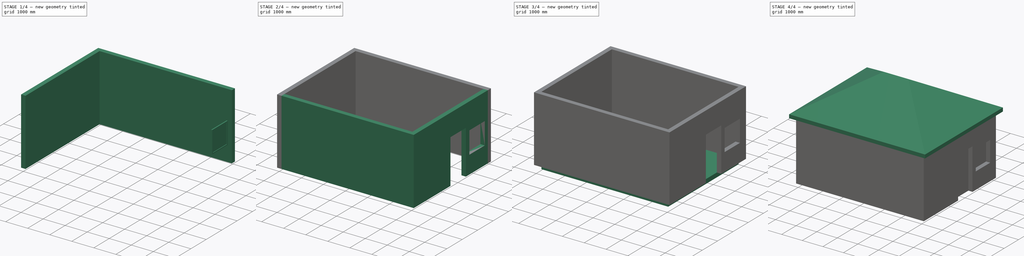
[diagram: build sequence overview — one tinted view per stage of 4, left to right]
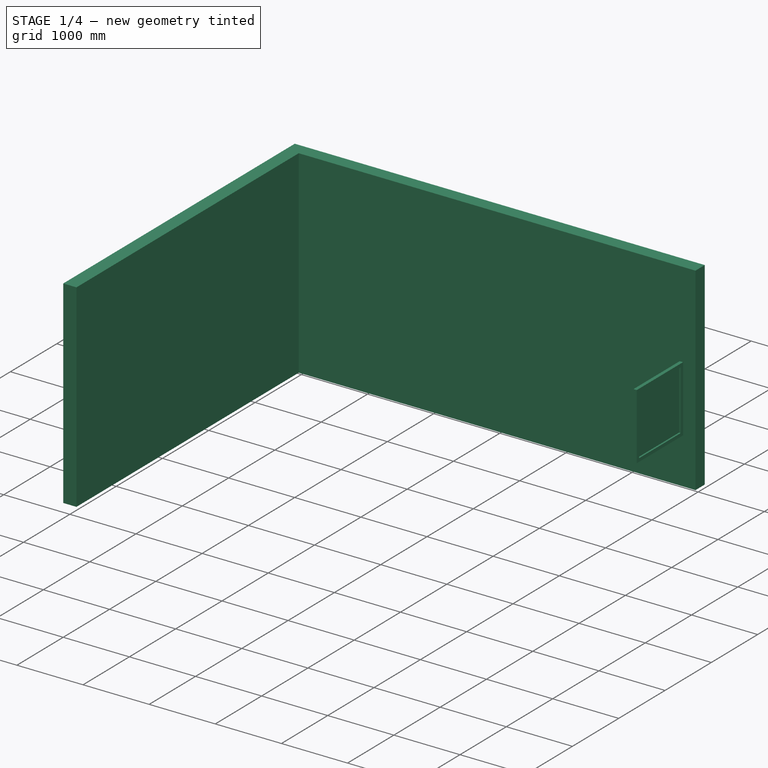
[diagram: stage 1 of 4 — iso view after this stage's code; geometry added in this stage tinted green]
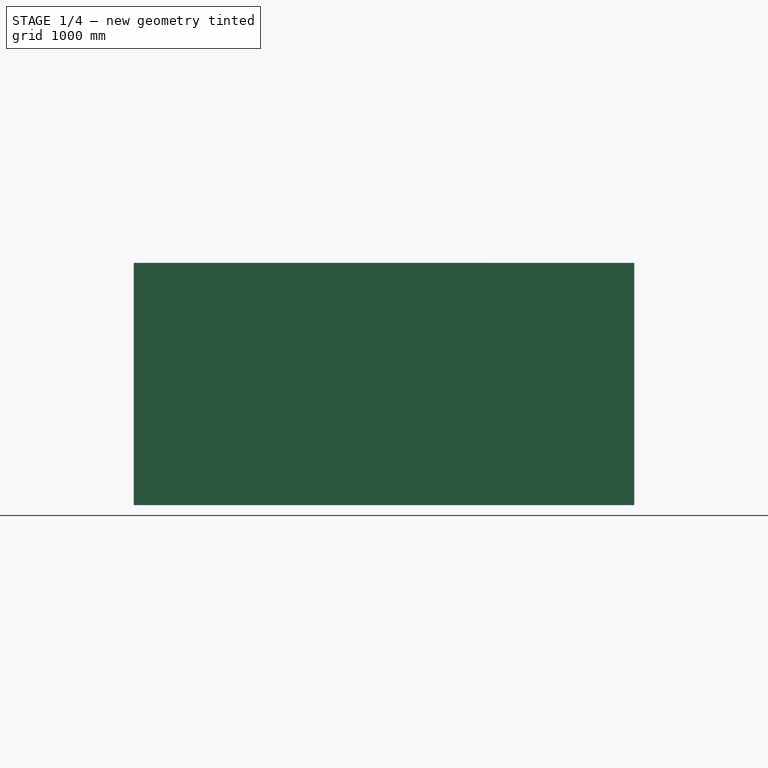
[diagram: stage 1 of 4 — front view after this stage's code; geometry added in this stage tinted green]
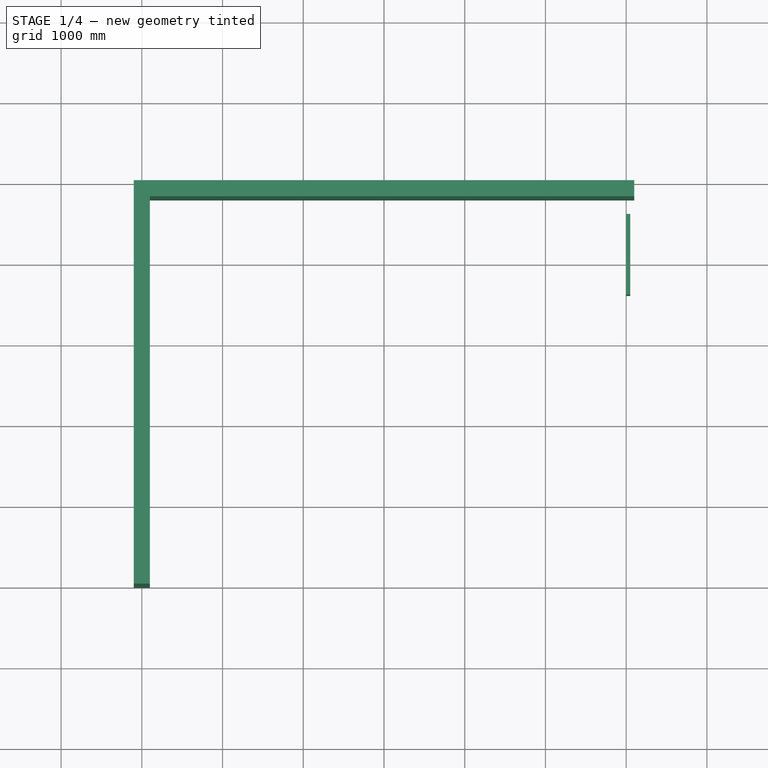
[diagram: stage 1 of 4 — top view after this stage's code; geometry added in this stage tinted green]
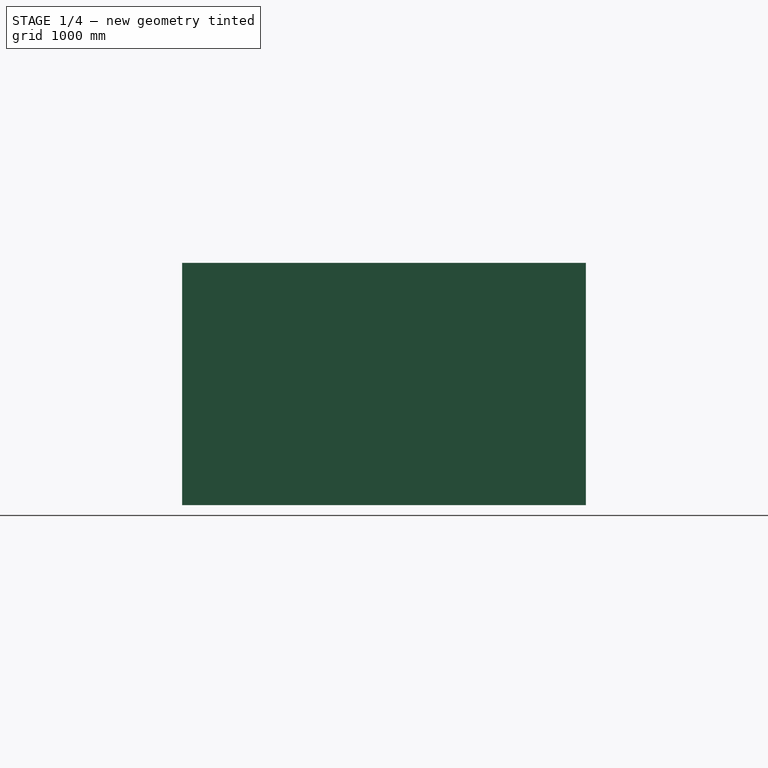
[diagram: stage 1 of 4 — right view after this stage's code; geometry added in this stage tinted green]
FCSTD DOCUMENT  (FreeCAD 0.16R6398 (Git))
Label: teste_A41
License: All rights reserved
LicenseURL: http://en.wikipedia.org/wiki/All_rights_reserved
objects: App::FeaturePython×12, Drawing::FeatureViewPython×12, Part::FeaturePython×11, Drawing::FeatureViewPart×6, Sketcher::SketchObject×5, App::DocumentObjectGroup×4, App::MaterialObjectPython×3, Part::Part2DObjectPython×3, Part::Feature×2, App::DocumentObjectGroupPython×2, Drawing::FeatureViewAnnotation×1, Part::Chamfer×1, Spreadsheet::Sheet×1, Drawing::FeatureViewSpreadsheet×1, Part::Extrusion×1, Drawing::FeaturePage×1
note: 27 computed .brp shape members not serialized (recipe doc carries the construction recipe); baked Part::Feature solids carry a one-line shape summary decoded from their .brp

FEATURE [App::MaterialObjectPython] Material002  label="Material"  # material (typed FeaturePython)
FEATURE [App::DocumentObjectGroupPython] MaterialContainer  label="Materials"  # scripted group (container) (typed FeaturePython)
  Group = -> [Material,Material001,Material002]
FEATURE [Sketcher::SketchObject] Sketch001
  Placement = pos=(100,4076.98,773.527) rot=(0.57735,0.57735,0.57735;2.0944rad)
  sketch-geometry (8):
    g0: LineSegment StartX=0 StartY=0 StartZ=0 EndX=1000 EndY=0 EndZ=0
    g1: LineSegment StartX=1000 StartY=0 StartZ=0 EndX=1000 EndY=1000 EndZ=0
    g2: LineSegment StartX=1000 StartY=1000 StartZ=0 EndX=0 EndY=1000 EndZ=0
    g3: LineSegment StartX=0 StartY=1000 StartZ=0 EndX=0 EndY=0 EndZ=0
    g4: LineSegment StartX=50 StartY=50 StartZ=0 EndX=950 EndY=50 EndZ=0
    g5: LineSegment StartX=950 StartY=50 StartZ=0 EndX=950 EndY=950 EndZ=0
    g6: LineSegment StartX=950 StartY=950 StartZ=0 EndX=50 EndY=950 EndZ=0
    g7: LineSegment StartX=50 StartY=950 StartZ=0 EndX=50 EndY=50 EndZ=0
  constraints (23):
    c: Coincident(g0,g1)
    c: Coincident(g1,g2)
    c: Coincident(g2,g3)
    c: Coincident(g3,g0)
    c: Horizontal(g0)
    c: Horizontal(g2)
    c: Vertical(g1)
    c: Vertical(g3)
    c: Coincident(g4,g5)
    c: Coincident(g5,g6)
    c: Coincident(g6,g7)
    c: Coincident(g7,g4)
    c: Horizontal(g4)
    c: Horizontal(g6)
    c: Vertical(g5)
    c: Vertical(g7)
    c: DistanceY(g1) = 1000
    c: DistanceX(g0) = 1000
    c: DistanceY(g6,g2) = 50
    c: DistanceX(g2,g6) = 50
    c: DistanceX(g4,g0) = 50
    c: DistanceY(g0,g4) = 50
    c: Coincident(g0,g-1)
FEATURE [Part::FeaturePython] Window001  label="Window"  # WARN: FeaturePython — macro-defined, semantics opaque (R4)
  Base = -> Sketch001
  Height = 1000
  HoleDepth = 0
  MoveWithHost = true
  Normal = (-1,0,0)
  Placement = pos=(0,-474.096,37.6961) rot=(0,0,1;0rad)
  Preset = 1
  Role = 0
  Width = 1000
  WindowParts = OuterFrame | Frame | Wire0,Wire1 | 50.0 | 50.0 | Glass | Glass panel | Wire1 | 5.0 | 75.0
FEATURE [Sketcher::SketchObject] Linha_base005
  Placement = pos=(-3000,2500,0) rot=(0,0,1;1.5708rad)
  sketch-geometry (1):
    g0: LineSegment StartX=2300 StartY=-3100 StartZ=0 EndX=2300 EndY=2900 EndZ=0
FEATURE [Part::FeaturePython] Wall004  # WARN: FeaturePython — macro-defined, semantics opaque (R4)
  Align = 0
  Base = -> Linha_base005
  Face = 0
  Height = 3000
  Length = 6000
  MoveWithHost = false
  Normal = (0,0,1)
  Role = 0
  Width = 200
FEATURE [Sketcher::SketchObject] Linha_base006
  Placement = pos=(-3000,2500,0) rot=(0,0,1;1.5708rad)
  sketch-geometry (1):
    g0: LineSegment StartX=2500 StartY=2900 StartZ=0 EndX=-2500 EndY=2900 EndZ=0
FEATURE [Part::FeaturePython] Wall005  # WARN: FeaturePython — macro-defined, semantics opaque (R4)
  Align = 0
  Base = -> Linha_base006
  Face = 0
  Height = 3000
  Length = 5000
  MoveWithHost = false
  Normal = (0,0,1)
  Role = 0
  Width = 200
FEATURE [App::DocumentObjectGroupPython] Floor  label="Piso"  # scripted group (container) (typed FeaturePython)
  Group = -> [Equipment,Chamfer007,Structure,Space,Grupo003,Window,Wall,Wall003,Wall004,Wall005]
  Height = 0
FEATURE [App::FeaturePython] Section  label="alçado"  # WARN: FeaturePython — macro-defined, semantics opaque (R4)
  Objects = -> [Equipment,Chamfer007,Floor]
  OnlySolids = true
  Placement = pos=(-100,2441.84,1576.92) rot=(0.57735,-0.57735,-0.57735;2.0944rad)
FEATURE [Drawing::FeatureViewPython] View  label="alçado001"  # drawing view (typed FeaturePython)
  FontSize = 12
  LineWidth = 0.1
  RenderingMode = 1
  Rotation = 90
  Scale = 0.01
  ShowCut = true
  ShowFill = false
  Source = -> Section
  ViewResult = <blob: 5665 chars omitted>
  Visible = true
  X = 100
  Y = 100
FEATURE [App::FeaturePython] Section001  label="corte"  # WARN: FeaturePython — macro-defined, semantics opaque (R4)
  Objects = -> [Window,Dimension001,Dimension002,Equipment,Chamfer007,Floor,Roof]
  OnlySolids = true
  Placement = pos=(0,2891.51,980) rot=(0.57735,-0.57735,0.57735;2.0944rad)
FEATURE [App::FeaturePython] Section002  label="planta001"  # WARN: FeaturePython — macro-defined, semantics opaque (R4)
  Objects = -> [Equipment,Chamfer007,Floor,Roof]
  OnlySolids = true
  Placement = pos=(0,0,1000) rot=(0,0,1;0rad)
FEATURE [Drawing::FeatureViewPython] View002  label="planta002"  # drawing view (typed FeaturePython)
  FontSize = 0
  LineWidth = 0.15
  RenderingMode = 1
  Rotation = 0
  Scale = 0.01
  ShowCut = false
  ShowFill = true
  Source = -> Section002
  ViewResult = <blob: 14572 chars omitted>
  Visible = true
  X = 100
  Y = 180
FEATURE [Part::Part2DObjectPython] Shape2DView  # Draft 2D object (typed FeaturePython)
  Base = -> Section002
  HiddenLines = false
  Projection = (0,0,1)
  ProjectionMode = 0
  SegmentLength = 0.05
  Tessellation = false
FEATURE [App::FeaturePython] Section003  label="alçado1"  # WARN: FeaturePython — macro-defined, semantics opaque (R4)
  Objects = -> [Roof,Floor]
  OnlySolids = true
  Placement = pos=(-3000,1406.48,2971.13) rot=(0.57735,-0.57735,0.57735;2.0944rad)
FEATURE [Drawing::FeatureViewPython] View004  label="alçado003"  # drawing view (typed FeaturePython)
  FontSize = 12
  LineWidth = 0.15
  RenderingMode = 1
  Rotation = 90
  Scale = 0.01
  ShowCut = false
  ShowFill = false
  Source = -> Section003
  ViewResult = <blob: 5448 chars omitted>
  Visible = true
  X = 175
  Y = 180
FEATURE [Drawing::FeatureViewPython] ViewShape2DView  # drawing view (typed FeaturePython)
  Direction = (0,0,0)
  FillStyle = 3
  FontSize = 12
  LineStyle = 0
  LineWidth = 0.35
  Rotation = 0
  Scale = 0.01
  Source = -> Shape2DView
  ViewResult = <blob: 45212 chars omitted>
  Visible = false
  X = 100
  Y = 180
FEATURE [Drawing::FeaturePage] Page
  Group = -> [Annotation,View,View002,View003,View004,ViewShape2DView,grabPoint001,grabPoint002,grabPoint003,View005,View006,View007,View008,View009,View010,dim001,dim002,dim003,dim004,dim005]
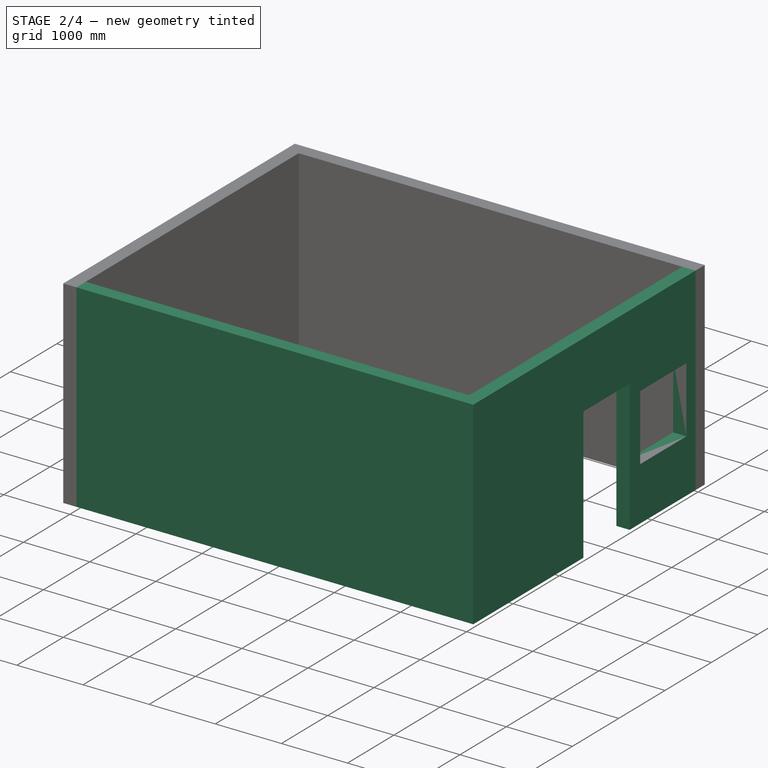
[diagram: stage 2 of 4 — iso view after this stage's code; geometry added in this stage tinted green]
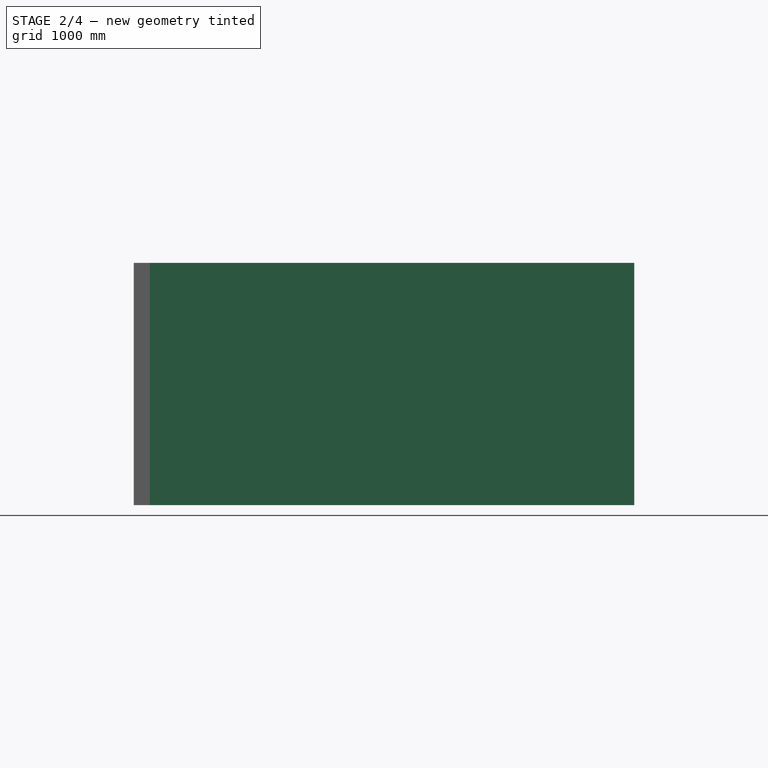
[diagram: stage 2 of 4 — front view after this stage's code; geometry added in this stage tinted green]
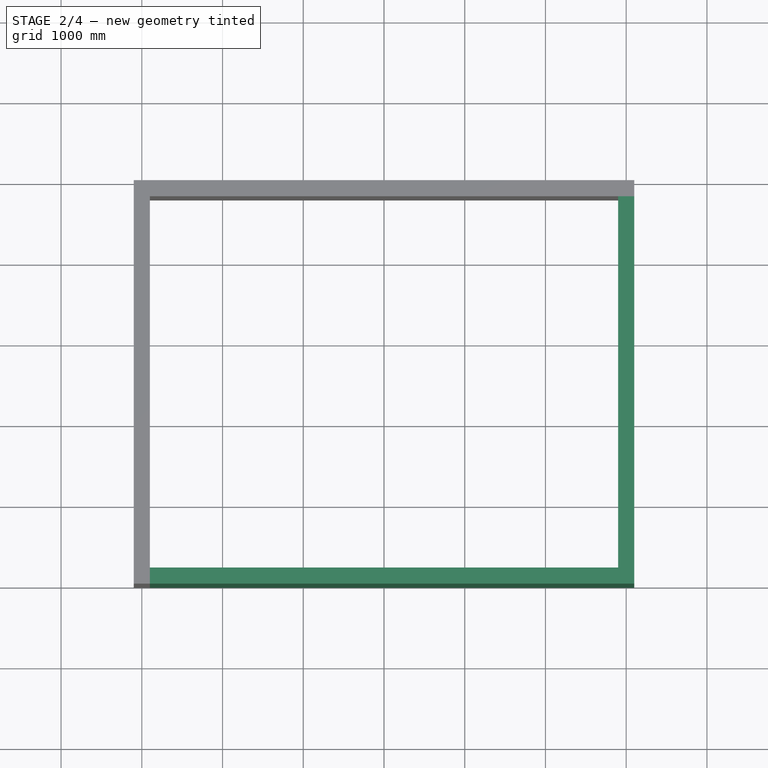
[diagram: stage 2 of 4 — top view after this stage's code; geometry added in this stage tinted green]
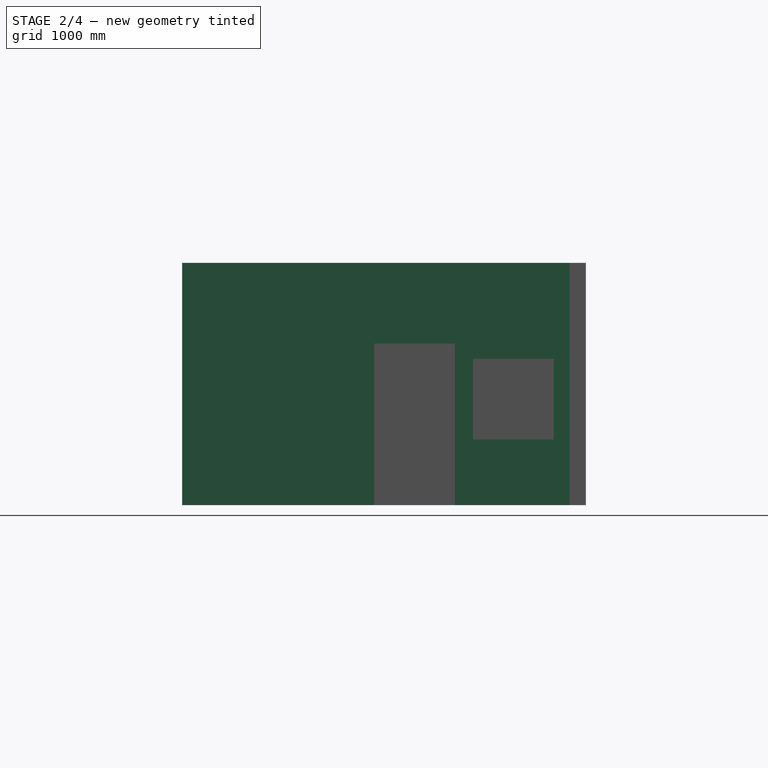
[diagram: stage 2 of 4 — right view after this stage's code; geometry added in this stage tinted green]
FEATURE [Drawing::FeatureViewAnnotation] Annotation
  Font = Sans
  Rotation = 0
  Scale = 3
  Text = Alçado
  ViewResult = <g transform="translate(50,105) rotate(0)">\n<text id="Annotation"\n font-family="Sans"\n font-size="3"\n fill="#000000">\n<tspan x="0" dy="1em">Alçado</tspan>\n</text>\n</g>
  Visible = true
  X = 50
  Y = 105
FEATURE [Sketcher::SketchObject] Sketch
  Placement = pos=(100,2378.06,50.1186) rot=(0.57735,0.57735,0.57735;2.0944rad)
  expr: Constraints[20] = Constraints.aro
  expr: Constraints[19] = Constraints.aro
  sketch-geometry (8):
    g0: LineSegment StartX=0 StartY=0 StartZ=0 EndX=1000 EndY=0 EndZ=0
    g1: LineSegment StartX=1000 StartY=0 StartZ=0 EndX=1000 EndY=2000 EndZ=0
    g2: LineSegment StartX=1000 StartY=2000 StartZ=0 EndX=0 EndY=2000 EndZ=0
    g3: LineSegment StartX=0 StartY=2000 StartZ=0 EndX=0 EndY=0 EndZ=0
    g4: LineSegment StartX=40 StartY=0 StartZ=0 EndX=960 EndY=0 EndZ=0
    g5: LineSegment StartX=960 StartY=0 StartZ=0 EndX=960 EndY=1960 EndZ=0
    g6: LineSegment StartX=960 StartY=1960 StartZ=0 EndX=40 EndY=1960 EndZ=0
    g7: LineSegment StartX=40 StartY=1960 StartZ=0 EndX=40 EndY=0 EndZ=0
  constraints (23):
    c: Coincident(g0,g1)
    c: Coincident(g1,g2)
    c: Coincident(g2,g3)
    c: Coincident(g3,g0)
    c: Horizontal(g0)
    c: Horizontal(g2)
    c: Vertical(g1)
    c: Vertical(g3)
    c: Coincident(g4,g5)
    c: Coincident(g5,g6)
    c: Coincident(g6,g7)
    c: Coincident(g7,g4)
    c: Horizontal(g4)
    c: Horizontal(g6)
    c: Vertical(g5)
    c: Vertical(g7)
    c: DistanceY(g1) = 2000
    c: DistanceX(g0) = 1000
    c: DistanceY(g6,g2) = 40  'aro'
    c: DistanceX(g2,g6) = 40
    c: DistanceX(g4,g0) = 40
    c: DistanceY(g0,g4) = 0
    c: Coincident(g0,g-1)
FEATURE [App::MaterialObjectPython] Material  label="Faia"  # material (typed FeaturePython)
  Material = AuthorAndLicense=(c) 2015 Bernd Hahnebach (CC-BY 3.0); CardName=Standard Wood Material; Density=700 kg/m^3; Description=A standard construction wood; DiffuseColor=(1.0, 0.6666666666666666, 0.0); Father=Aggregate; Name=Faia; PoissonRatio=0.05; ProductURL=http://en.wikipedia.org/wiki/Wood; YoungsModulus=12000 MPa
FEATURE [Part::FeaturePython] Window  label="Porta"  # WARN: FeaturePython — macro-defined, semantics opaque (R4)
  Base = -> Sketch
  BaseMaterial = -> Material
  Height = 2000
  HoleDepth = 0
  MoveWithHost = true
  Normal = (-1,0,0)
  Placement = pos=(0,0,-50.1186) rot=(0,0,1;0rad)
  Preset = 6
  Role = 1
  Width = 1000
  WindowParts = OuterFrame | Frame | Wire0,Wire1 | 200 | 0 | Door | Solid panel | Wire1 | 50 | 100
FEATURE [Part::FeaturePython] Wall  # WARN: FeaturePython — macro-defined, semantics opaque (R4)
  Align = 0
  Face = 0
  Height = 3000
  Length = 5800
  MoveWithHost = false
  Normal = (0,0,1)
  Placement = pos=(-5900,-2e-10,-1e-10) rot=(0,0,1;0rad)
  Role = 0
  Width = 200
FEATURE [Sketcher::SketchObject] Linha_base004
  Placement = pos=(-3000,2500,0) rot=(0,0,1;1.5708rad)
  sketch-geometry (1):
    g0: LineSegment StartX=-2500 StartY=-2900 StartZ=0 EndX=2300 EndY=-2900 EndZ=0
FEATURE [Part::FeaturePython] Wall003  # WARN: FeaturePython — macro-defined, semantics opaque (R4)
  Align = 0
  Base = -> Linha_base004
  Face = 0
  Height = 3000
  Length = 4800
  MoveWithHost = false
  Normal = (0,0,1)
  Role = 0
  Subtractions = -> [Window001,Window]
  Width = 200
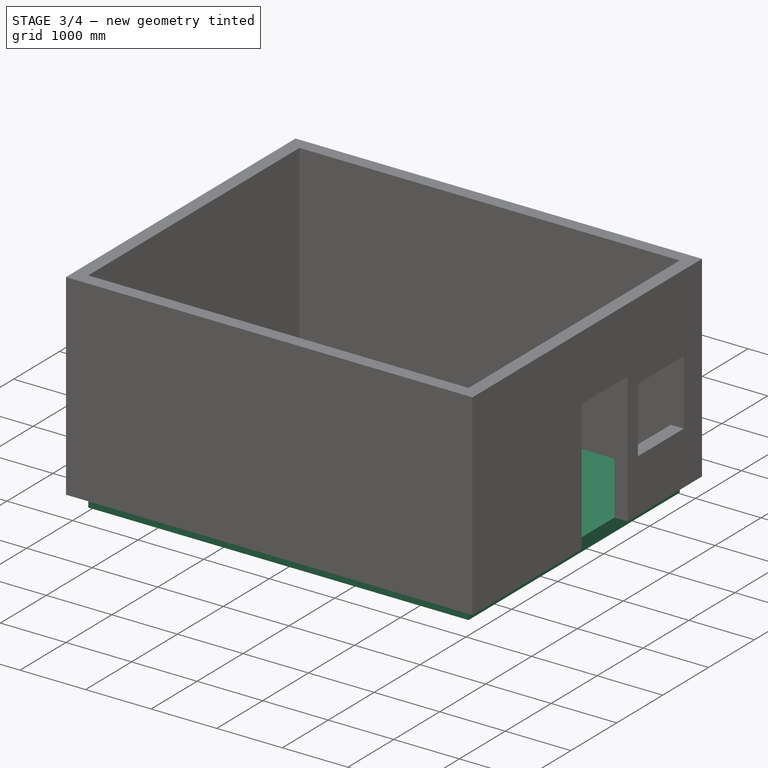
[diagram: stage 3 of 4 — iso view after this stage's code; geometry added in this stage tinted green]
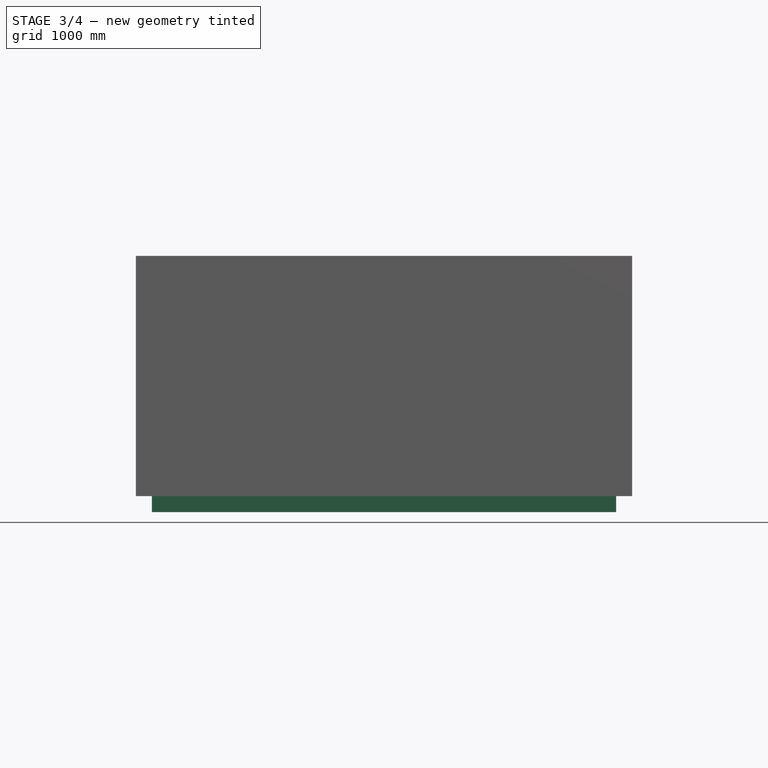
[diagram: stage 3 of 4 — front view after this stage's code; geometry added in this stage tinted green]
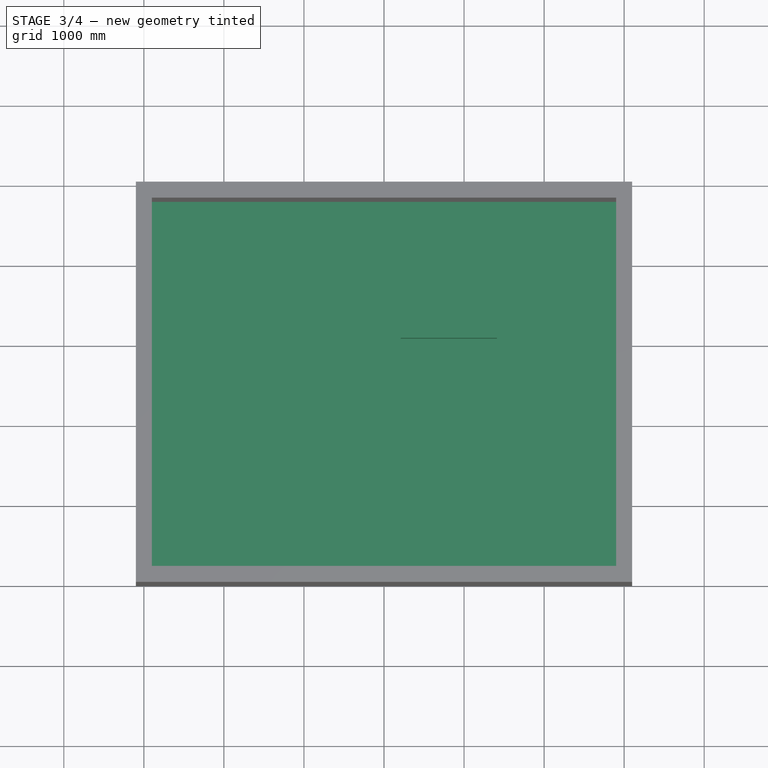
[diagram: stage 3 of 4 — top view after this stage's code; geometry added in this stage tinted green]
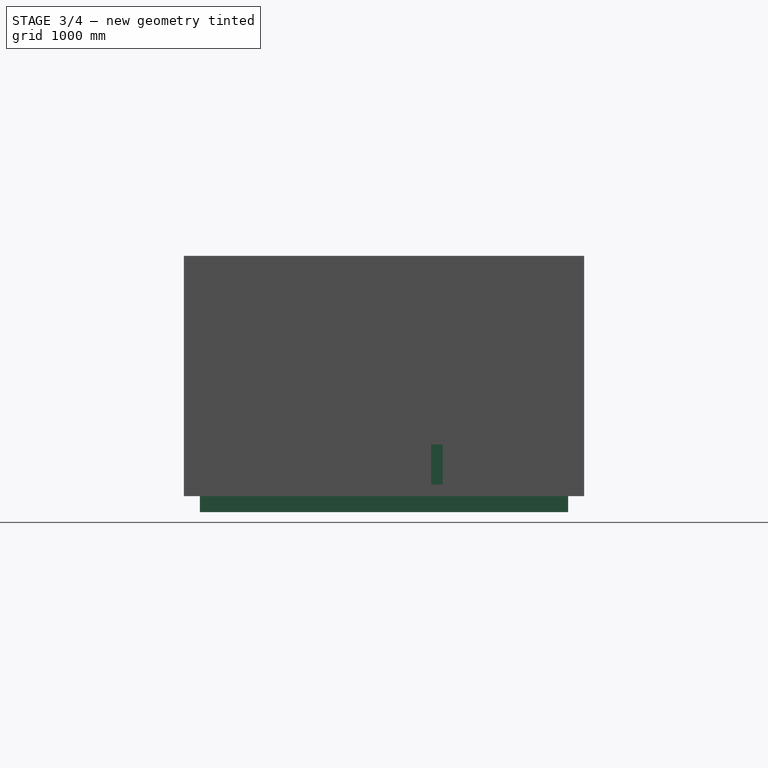
[diagram: stage 3 of 4 — right view after this stage's code; geometry added in this stage tinted green]
FEATURE [Part::Feature] Chamfer008  label="Europalette"
  Placement = pos=(0,0,-144) rot=(0,0,1;0rad)
  shape: bbox 1200 x 800 x 144 mm, 66 faces (baked)
FEATURE [Part::Chamfer] Chamfer007  label="EuropaletteCham"
  Base = -> Chamfer008
  Edges = 12 edges r=10: [Edge7,Edge11,Edge46,Edge86,Edge164,Edge166,Edge167,Edge172,Edge179,Edge181,Edge184,Edge193]
  Placement = pos=(-2790.18,2761.85,144) rot=(0,0,1;0rad)
FEATURE [Part::Part2DObjectPython] Rectangle001  # Draft 2D object (typed FeaturePython)
  ChamferSize = 0
  Columns = 1
  FilletRadius = 0
  Height = 4600
  Length = -5800
  MakeFace = true
  Placement = pos=(-100,200,0) rot=(0,0,1;0rad)
  Rows = 1
FEATURE [Part::FeaturePython] Structure  # WARN: FeaturePython — macro-defined, semantics opaque (R4)
  Base = -> Rectangle001
  Height = 200
  Length = 0
  MoveWithHost = false
  Nodes = (2) [(-3000,2500,0),(-3000,2500,200)]
  Normal = (0,0,0)
  Placement = pos=(0,0,-200) rot=(0,0,1;0rad)
  Role = 2
  Width = 100
FEATURE [Drawing::FeatureViewPython] grabPoint001  # drawing view (typed FeaturePython)
  Rotation = 0
  ViewResult = <g> <line x1="97.969257382" y1="68.8400485731" x2="97.969257382" y2="68.8400485731" style="stroke:rgb(0,0,0);stroke-width:0.01" /> </g> 
  Visible = true
  X = 0
  Y = 0
  click1_x = 97.9693
  click1_y = 68.84
FEATURE [Drawing::FeatureViewPython] grabPoint002  # drawing view (typed FeaturePython)
  Rotation = 0
  ViewResult = <g> <line x1="102.071125561" y1="64.9165224886" x2="102.071125561" y2="64.9165224886" style="stroke:rgb(0,0,0);stroke-width:0.01" /> </g> 
  Visible = true
  X = 0
  Y = 0
  click1_x = 102.071
  click1_y = 64.9165
FEATURE [Drawing::FeatureViewPython] grabPoint003  # drawing view (typed FeaturePython)
  Rotation = 0
  ViewResult = <g> <line x1="88.2793369007" y1="63.0142068113" x2="88.2793369007" y2="63.0142068113" style="stroke:rgb(0,0,0);stroke-width:0.01" /> </g> 
  Visible = true
  X = 0
  Y = 0
  click1_x = 88.2793
  click1_y = 63.0142
FEATURE [App::DocumentObjectGroup] Grupo003
FEATURE [Drawing::FeatureViewPart] View005
  Direction = (0,0,1)
  HiddenWidth = 0.15
  LineWidth = 0.35
  Rotation = 0
  Scale = 0.01
  ShowHiddenLines = false
  ShowSmoothLines = false
  Tolerance = 0.05
  ViewResult = <g id="View005"\n   transform="rotate(0,185,100) translate(185,100) scale(0.01,0.01)"\n  >\n<g   stroke="rgb(0, 0, 0)"\n   stroke-width="35"\n   stroke-linecap="butt"\n   stroke-linejoin="miter"\n   fill="none"\n   transform="scale(1,-1)"\n  >\n<path id= "1" d=" M 100 0 L 100 5000 " />\n<path id= "2" d=" M 100 5000 L -100 5000 " />\n<path id= "3" d=" M 100 0 L -100 0 " />\n<path id= "4" d=" M -100 0 L -100 5000 " />\n</g>\n</g>
  Visible = true
  X = 185
  Y = 100
FEATURE [Drawing::FeatureViewPart] View006
  Direction = (0,0,1)
  HiddenWidth = 0.15
  LineWidth = 0.35
  Rotation = 0
  Scale = 0.01
  ShowHiddenLines = false
  ShowSmoothLines = false
  Source = -> Equipment
  Tolerance = 0.05
  ViewResult = <blob: 6803 chars omitted>
  Visible = true
  X = 185
  Y = 100
FEATURE [Drawing::FeatureViewPart] View007
  Direction = (0,0,1)
  HiddenWidth = 0.15
  LineWidth = 0.35
  Rotation = 0
  Scale = 0.01
  ShowHiddenLines = false
  ShowSmoothLines = false
  Source = -> Chamfer007
  Tolerance = 0.05
  ViewResult = <blob: 3336 chars omitted>
  Visible = true
  X = 185
  Y = 100
FEATURE [Drawing::FeatureViewPart] View008
  Direction = (0,0,1)
  HiddenWidth = 0.15
  LineWidth = 0.35
  Rotation = 0
  Scale = 0.01
  ShowHiddenLines = false
  ShowSmoothLines = false
  Tolerance = 0.05
  ViewResult = <g id="View008"\n   transform="rotate(0,185,100) translate(185,100) scale(0.01,0.01)"\n  >\n<g   stroke="rgb(0, 0, 0)"\n   stroke-width="35"\n   stroke-linecap="butt"\n   stroke-linejoin="miter"\n   fill="none"\n   transform="scale(1,-1)"\n  >\n<path id= "1" d=" M -100 5000 L -100 4800 " />\n<path id= "2" d=" M -100 4800 L -100 5000 " />\n<path id= "3" d=" M -100 200 L -100 4800 " />\n<path id= "4" d=" M -100 4800 L -5900 4800 " />\n<path id= "5" d=" M -100 5000 L -6100 5000 " />\n<path id= "6" d=" M -6100 5000 L -6100 4800 " />\n<path id= "7" d=" M -5900 200 L -5900 4800 " />\n<path id= "8" d=" M -100 4800 L 100 5000 " />\n<path id= "9" d=" M 100 5000 L -100 5000 " />\n<path id= "10" d=" M -6100 4800 L -5900 4800 " />\n<path id= "11" d=" M 100 3.86535e-12 L 100 5000 " />\n<path id= "12" d=" M -100 200 L 100 3.41061e-13 " />\n<path id= "13" d=" M -100 200 L -5900 200 " />\n<path id= "14" d=" M -5900 200 L -6100 -1.7053e-13 " />\n<path id= "15" d=" M -6100 -3.63798e-12 L -6100 4800 " />\n<path id= "16" d=" M 100 2.84217e-14 L -6100 2.84217e-14 " />\n</g>\n</g>
  Visible = true
  X = 185
  Y = 100
FEATURE [Drawing::FeatureViewPart] View009
  Direction = (0,0,1)
  HiddenWidth = 0.15
  LineWidth = 0.35
  Rotation = 0
  Scale = 0.01
  ShowHiddenLines = false
  ShowSmoothLines = false
  Tolerance = 0.05
  ViewResult = <g id="View009"\n   transform="rotate(0,185,100) translate(185,100) scale(0.01,0.01)"\n  >\n<g   stroke="rgb(0, 0, 0)"\n   stroke-width="35"\n   stroke-linecap="butt"\n   stroke-linejoin="miter"\n   fill="none"\n   transform="scale(1,-1)"\n  >\n<path id= "1" d=" M -100 200 L -100 4800 " />\n<path id= "2" d=" M -100 4800 L -100 5000 " />\n<path id= "3" d=" M -100 5000 L -100 4800 " />\n<path id= "4" d=" M 100 3.86535e-12 L 100 5000 " />\n<path id= "5" d=" M -100 200 L -5900 200 " />\n<path id= "6" d=" M -100 4800 L 100 5000 " />\n<path id= "7" d=" M -100 200 L 100 3.41061e-13 " />\n<path id= "8" d=" M 100 5000 L -100 5000 " />\n<path id= "9" d=" M -100 5000 L -6100 5000 " />\n<path id= "10" d=" M -6100 5000 L -6100 4800 " />\n<path id= "11" d=" M -100 4800 L -5900 4800 " />\n<path id= "12" d=" M 100 2.84217e-14 L -6100 2.84217e-14 " />\n<path id= "13" d=" M -5900 200 L -5900 4800 " />\n<path id= "14" d=" M -6100 -3.63798e-12 L -6100 4800 " />\n<path id= "15" d=" M -5900 200 L -6100 -1.7053e-13 " />\n<path id= "16" d=" M -6100 4800 L -5900 4800 " />\n</g>\n</g>
  Visible = true
  X = 185
  Y = 100
FEATURE [Drawing::FeatureViewPart] View010
  Direction = (0,0,1)
  HiddenWidth = 0.15
  LineWidth = 0.35
  Rotation = 0
  Scale = 0.01
  ShowHiddenLines = false
  ShowSmoothLines = false
  Source = -> Structure
  Tolerance = 0.05
  ViewResult = <g id="View010"\n   transform="rotate(0,185,100) translate(185,100) scale(0.01,0.01)"\n  >\n<g   stroke="rgb(0, 0, 0)"\n   stroke-width="35"\n   stroke-linecap="butt"\n   stroke-linejoin="miter"\n   fill="none"\n   transform="scale(1,-1)"\n  >\n<path id= "1" d=" M -100 200 L -5900 200 " />\n<path id= "2" d=" M -5900 200 L -5900 4800 " />\n<path id= "3" d=" M -5900 4800 L -100 4800 " />\n<path id= "4" d=" M -100 4800 L -100 200 " />\n</g>\n</g>
  Visible = true
  X = 185
  Y = 100
FEATURE [Drawing::FeatureViewPython] dim001  # drawing view (typed FeaturePython)
  Rotation = 0
  ViewResult = <g> \n  <line x1="124.000000" y1="49.000000" x2="124.000000" y2="44.371955" style="stroke:rgb(86,86,86);stroke-width:0.10" />\n<line x1="186.000000" y1="49.000000" x2="186.000000" y2="44.371955" style="stroke:rgb(86,86,86);stroke-width:0.10" />\n<line x1="124.000000" y1="45.371955" x2="186.000000" y2="45.371955" style="stroke:rgb(86,86,86);stroke-width:0.10" /> \n  <polygon points="186.000000,45.371955 185.000000,44.871955 185.000000,45.371955 185.000000,45.871955" style="fill:rgb(86,86,86);stroke:rgb(86,86,86);stroke-width:0" /><polygon points="124.000000,45.371955 125.000000,45.871955 125.000000,45.371955 125.000000,44.871955" style="fill:rgb(86,86,86);stroke:rgb(86,86,86);stroke-width:0" /> \n  <text x="155.000000" y="44.371955" font-family="Verdana" font-size="1.5" fill="rgb(255,0,0)" text-anchor="middle" transform="rotate(0.000000 155.000000,44.371955)" >6.2</text> </g>
  Visible = true
  X = 0
  Y = 0
  arrowL1 = 1
  arrowL2 = 0
  arrowW = 1
  arrow_scheme = 0
  autoPlaceOffset = 1
  autoPlaceText = true
  click1_x = 186.473
  click1_y = 45.372
  click2_x = 186.473
  click2_y = 45.372
  comma_decimal_place = false
  dimension_line_overshoot = 1
  gap_datum_points = 1
  halfDimension_linear = false
  lineColor = rgb(86,86,86)
  strokeWidth = 0.1
  textFormat_linear = %3.2f
  textRenderer_color = rgb(255,0,0)
  textRenderer_family = Verdana
  textRenderer_size = 1.5
  unit_custom_scale = 1
  unit_scheme = 0
FEATURE [Drawing::FeatureViewPython] dim002  # drawing view (typed FeaturePython)
  Rotation = 0
  ViewResult = <g> \n  <line x1="123.000000" y1="50.000000" x2="118.495438" y2="50.000000" style="stroke:rgb(86,86,86);stroke-width:0.10" />\n<line x1="123.000000" y1="100.000000" x2="118.495438" y2="100.000000" style="stroke:rgb(86,86,86);stroke-width:0.10" />\n<line x1="119.495438" y1="50.000000" x2="119.495438" y2="100.000000" style="stroke:rgb(86,86,86);stroke-width:0.10" /> \n  <polygon points="119.495438,100.000000 119.995438,99.000000 119.495438,99.000000 118.995438,99.000000" style="fill:rgb(86,86,86);stroke:rgb(86,86,86);stroke-width:0" /><polygon points="119.495438,50.000000 118.995438,51.000000 119.495438,51.000000 119.995438,51.000000" style="fill:rgb(86,86,86);stroke:rgb(86,86,86);stroke-width:0" /> \n  <text x="118.495438" y="75.000000" font-family="Verdana" font-size="1.5" fill="rgb(255,0,0)" text-anchor="middle" transform="rotate(-90.000000 118.495438,75.000000)" >5</text> </g>
  Visible = true
  X = 0
  Y = 0
  arrowL1 = 1
  arrowL2 = 0
  arrowW = 1
  arrow_scheme = 0
  autoPlaceOffset = 1
  autoPlaceText = true
  click1_x = 119.495
  click1_y = 92.6344
  click2_x = 119.495
  click2_y = 92.6344
  comma_decimal_place = false
  dimension_line_overshoot = 1
  gap_datum_points = 1
  halfDimension_linear = false
  lineColor = rgb(86,86,86)
  strokeWidth = 0.1
  textFormat_linear = %3.2f
  textRenderer_color = rgb(255,0,0)
  textRenderer_family = Verdana
  textRenderer_size = 1.5
  unit_custom_scale = 1
  unit_scheme = 0
FEATURE [Drawing::FeatureViewPython] dim003  # drawing view (typed FeaturePython)
  Rotation = 0
  ViewResult = <g> \n  <line x1="160.125200" y1="67.022400" x2="158.061884" y2="67.022400" style="stroke:rgb(86,86,86);stroke-width:0.10" />\n<line x1="183.000000" y1="52.000000" x2="158.061884" y2="52.000000" style="stroke:rgb(86,86,86);stroke-width:0.10" />\n<line x1="159.061884" y1="67.022400" x2="159.061884" y2="52.000000" style="stroke:rgb(86,86,86);stroke-width:0.10" /> \n  <polygon points="159.061884,52.000000 158.561884,53.000000 159.061884,53.000000 159.561884,53.000000" style="fill:rgb(86,86,86);stroke:rgb(86,86,86);stroke-width:0" /><polygon points="159.061884,67.022400 159.561884,66.022400 159.061884,66.022400 158.561884,66.022400" style="fill:rgb(86,86,86);stroke:rgb(86,86,86);stroke-width:0" /> \n  <text x="158.061884" y="59.511200" font-family="Verdana" font-size="1.5" fill="rgb(255,0,0)" text-anchor="middle" transform="rotate(-90.000000 158.061884,59.511200)" >1.5</text> </g>
  Visible = true
  X = 0
  Y = 0
  arrowL1 = 1
  arrowL2 = 0
  arrowW = 1
  arrow_scheme = 0
  autoPlaceOffset = 1
  autoPlaceText = true
  click1_x = 159.062
  click1_y = 58.3535
  click2_x = 159.062
  click2_y = 58.3535
  comma_decimal_place = false
  dimension_line_overshoot = 1
  gap_datum_points = 1
  halfDimension_linear = false
  lineColor = rgb(86,86,86)
  strokeWidth = 0.1
  textFormat_linear = %3.2f
  textRenderer_color = rgb(255,0,0)
  textRenderer_family = Verdana
  textRenderer_size = 1.5
  unit_custom_scale = 1
  unit_scheme = 0
FEATURE [Drawing::FeatureViewPython] dim004  # drawing view (typed FeaturePython)
  Rotation = 0
  ViewResult = <g> \n  <line x1="127.000000" y1="98.000000" x2="130.353036" y2="98.000000" style="stroke:rgb(86,86,86);stroke-width:0.10" />\n<line x1="127.000000" y1="52.000000" x2="130.353036" y2="52.000000" style="stroke:rgb(86,86,86);stroke-width:0.10" />\n<line x1="129.353036" y1="98.000000" x2="129.353036" y2="52.000000" style="stroke:rgb(86,86,86);stroke-width:0.10" /> \n  <polygon points="129.353036,52.000000 128.853036,53.000000 129.353036,53.000000 129.853036,53.000000" style="fill:rgb(86,86,86);stroke:rgb(86,86,86);stroke-width:0" /><polygon points="129.353036,98.000000 129.853036,97.000000 129.353036,97.000000 128.853036,97.000000" style="fill:rgb(86,86,86);stroke:rgb(86,86,86);stroke-width:0" /> \n  <text x="128.353036" y="75.000000" font-family="Verdana" font-size="1.5" fill="rgb(255,0,0)" text-anchor="middle" transform="rotate(-90.000000 128.353036,75.000000)" >4.6</text> </g>
  Visible = true
  X = 0
  Y = 0
  arrowL1 = 1
  arrowL2 = 0
  arrowW = 1
  arrow_scheme = 0
  autoPlaceOffset = 1
  autoPlaceText = true
  click1_x = 129.353
  click1_y = 66.0324
  click2_x = 129.353
  click2_y = 66.0324
  comma_decimal_place = false
  dimension_line_overshoot = 1
  gap_datum_points = 1
  halfDimension_linear = false
  lineColor = rgb(86,86,86)
  strokeWidth = 0.1
  textFormat_linear = %3.2f
  textRenderer_color = rgb(255,0,0)
  textRenderer_family = Verdana
  textRenderer_size = 1.5
  unit_custom_scale = 1
  unit_scheme = 0
FEATURE [Drawing::FeatureViewPython] dim005  # drawing view (typed FeaturePython)
  Rotation = 0
  ViewResult = <g> \n  <line x1="186.000000" y1="101.000000" x2="186.000000" y2="104.639808" style="stroke:rgb(86,86,86);stroke-width:0.10" />\n<line x1="124.000000" y1="101.000000" x2="124.000000" y2="104.639808" style="stroke:rgb(86,86,86);stroke-width:0.10" />\n<line x1="186.000000" y1="103.639808" x2="124.000000" y2="103.639808" style="stroke:rgb(86,86,86);stroke-width:0.10" /> \n  <polygon points="124.000000,103.639808 125.000000,104.139808 125.000000,103.639808 125.000000,103.139808" style="fill:rgb(86,86,86);stroke:rgb(86,86,86);stroke-width:0" /><polygon points="186.000000,103.639808 185.000000,103.139808 185.000000,103.639808 185.000000,104.139808" style="fill:rgb(86,86,86);stroke:rgb(86,86,86);stroke-width:0" /> \n  <text x="155.000000" y="102.639808" font-family="Verdana" font-size="1.5" fill="rgb(255,0,0)" text-anchor="middle" transform="rotate(0.000000 155.000000,102.639808)" >6.2</text> </g>
  Visible = true
  X = 0
  Y = 0
  arrowL1 = 1
  arrowL2 = 0
  arrowW = 1
  arrow_scheme = 0
  autoPlaceOffset = 1
  autoPlaceText = true
  click1_x = 136.836
  click1_y = 103.64
  click2_x = 136.836
  click2_y = 103.64
  comma_decimal_place = false
  dimension_line_overshoot = 1
  gap_datum_points = 1
  halfDimension_linear = false
  lineColor = rgb(86,86,86)
  strokeWidth = 0.1
  textFormat_linear = %3.2f
  textRenderer_color = rgb(255,0,0)
  textRenderer_family = Verdana
  textRenderer_size = 1.5
  unit_custom_scale = 1
  unit_scheme = 0
FEATURE [Part::FeaturePython] Chamfer007_Face_1  label="Face-1 of EuropaletteCham"  # WARN: FeaturePython — macro-defined, semantics opaque (R4)
  Object = -> Chamfer007
  SubNames = Face-1
FEATURE [Part::Extrusion] Extrude001
  Base = -> Chamfer007_Face_1
  Dir = (0,0,500)
  Solid = true
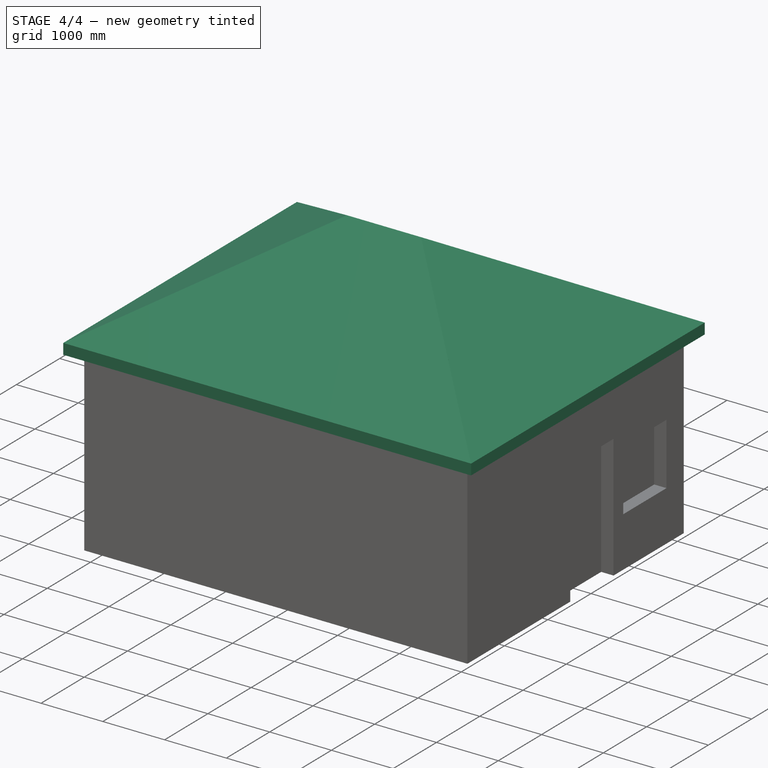
[diagram: stage 4 of 4 — iso view after this stage's code; geometry added in this stage tinted green]
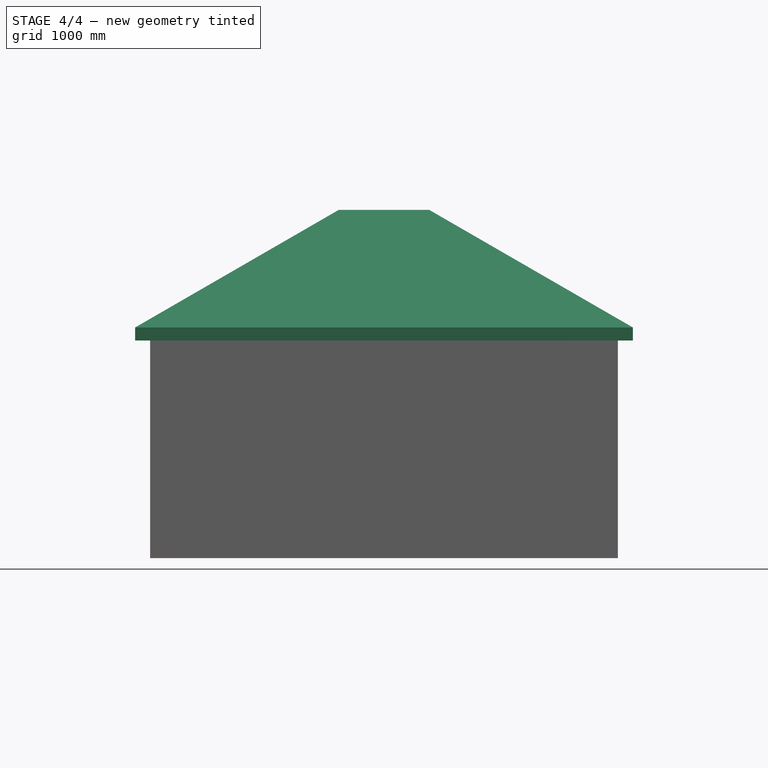
[diagram: stage 4 of 4 — front view after this stage's code; geometry added in this stage tinted green]
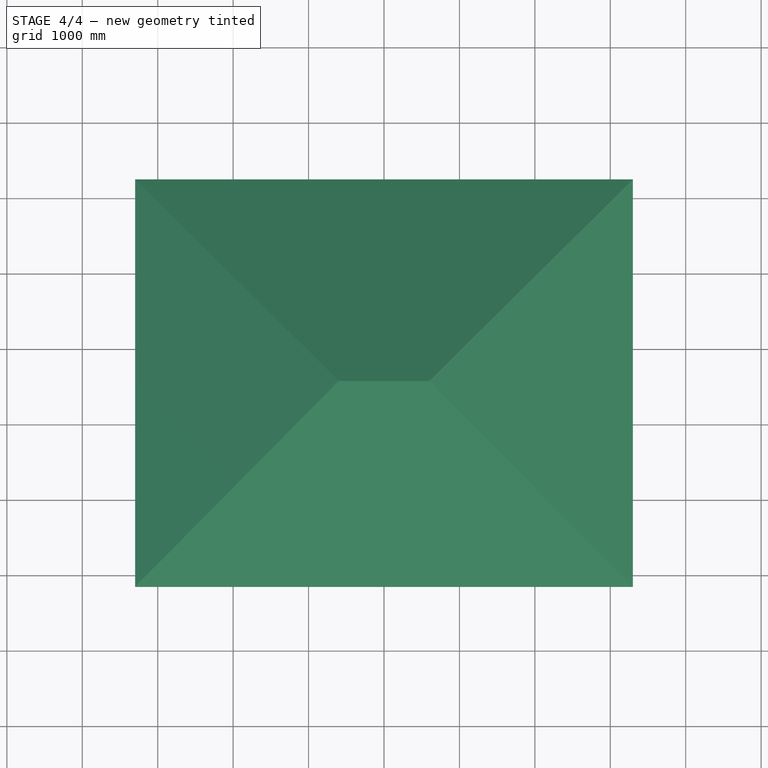
[diagram: stage 4 of 4 — top view after this stage's code; geometry added in this stage tinted green]
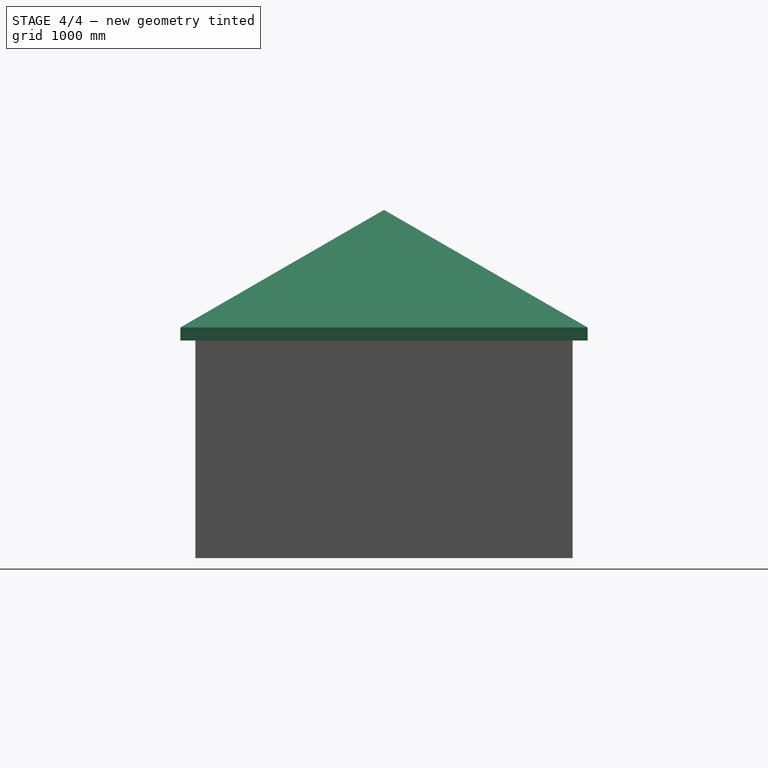
[diagram: stage 4 of 4 — right view after this stage's code; geometry added in this stage tinted green]
FEATURE [App::FeaturePython] Dimension001  # Draft dimension (typed FeaturePython)
  Dimline = (419.323,3338.06,1960)
  Direction = (0,0,0)
  Distance = 1000
  End = (100,3338.06,3000)
  Normal = (0,-1,0)
  Start = (100,3338.06,2000)
FEATURE [App::FeaturePython] Dimension002  # Draft dimension (typed FeaturePython)
  Dimline = (419.323,3338.06,2000)
  Direction = (0,0,0)
  Distance = 2000
  End = (100,3378.06,2000)
  LinkedGeometry = -> [Window]
  Normal = (0,-1,0)
  Start = (100,3378.06,0)
  Support = -> Window
FEATURE [App::FeaturePython] Dimension  # Draft dimension (typed FeaturePython)
  Dimline = (468.075,4425.11,0)
  Direction = (0,0,0)
  Distance = 1621.94
  End = (100,5000,0)
  Normal = (0,0,1)
  Start = (100,3378.06,0)
FEATURE [App::FeaturePython] Dimension003  # Draft dimension (typed FeaturePython)
  Dimline = (468.075,3378.06,0)
  Direction = (0,0,0)
  Distance = 2378.06
  End = (100,2378.06,0)
  Normal = (0,0,1)
  Start = (100,0,0)
FEATURE [App::FeaturePython] Dimension004  # Draft dimension (typed FeaturePython)
  Dimline = (468.075,3378.06,0)
  Direction = (0,0,0)
  Distance = 1000
  End = (100,2378.06,0)
  Normal = (0,0,1)
  Start = (100,3378.06,0)
FEATURE [App::DocumentObjectGroup] Grupo001  label="planta"
  Group = -> [Dimension,Dimension003,Dimension004]
FEATURE [App::FeaturePython] Dimension005  # Draft dimension (typed FeaturePython)
  Dimline = (-100,3821.74,-250.314)
  Direction = (0,0,0)
  Distance = 1621.94
  End = (-100,3378.06,0)
  Normal = (-1,0,0)
  Start = (-100,5000,0)
FEATURE [App::FeaturePython] Dimension006  # Draft dimension (typed FeaturePython)
  Dimline = (-100,3378.06,-250.314)
  Direction = (0,0,0)
  Distance = 1000
  End = (-100,2378.06,0)
  Normal = (-1,0,0)
  Start = (-100,3378.06,0)
FEATURE [App::FeaturePython] Dimension007  # Draft dimension (typed FeaturePython)
  Dimline = (-100,2378.06,-250.314)
  Direction = (0,0,0)
  Distance = 2378.06
  End = (-100,0,0)
  Normal = (-1,0,0)
  Start = (-100,2378.06,0)
FEATURE [App::DocumentObjectGroup] Grupo002  label="alçado002"
  Group = -> [Dimension005,Dimension006,Dimension007]
FEATURE [App::DocumentObjectGroup] Grupo  label="cotas"
  Group = -> [Dimension001,Dimension002,Grupo001,Grupo002]
FEATURE [Part::Feature] Compound001001  label="Compound001"
  shape: bbox 609.1 x 558 x 955.2 mm, 70 faces, 2 solids (baked)
FEATURE [Part::FeaturePython] Equipment  label="Fauteil Ikea"  # WARN: FeaturePython — macro-defined, semantics opaque (R4)
  Base = -> Compound001001
  MoveWithHost = true
  Placement = pos=(-385.026,2527.11,0) rot=(0,0,1;0rad)
  Role = 0
FEATURE [App::MaterialObjectPython] Material001  label="Tijolo"  # material (typed FeaturePython)
  Material = AuthorAndLicense=(c) 2015 Przemo Firszt (CC-BY 3.0); CardName=Standard Not Defined Material; Density=0 kg/m^3; Description=This is a not defined material; DiffuseColor=(0.6666666666666666, 0.0, 0.0); Father=None; Name=Tijolo; PoissonRatio=0; SpecificPrice=0; UltimateTensileStrength=0 MPa; YoungsModulus=0 MPa
FEATURE [Spreadsheet::Sheet] Schedule001
  cells = A1=Quantities schedule; A2=Project: teste_A4; A3=Date: Wed Jan 06 12:53:44 2016; B5=Material; C5=Description; D5=Finish; E5=Item; F5=Volume (m³); G5=Unit price (€/m³); H5=Total price (€); A7=1. Walls; B9=Tijolo; C9=This is a not defined material; E9=Wall; F9=12.56; G9=0; H9==F9 * G9; E10=Total; F10=12.56; G10=0; H10==F10 * G10; A12=2. Miscellaneous
FEATURE [Drawing::FeatureViewSpreadsheet] View003  label="tabela"
  CellEnd = H12
  CellStart = A1
  Font = Sans
  FontSize = 12
  LineWidth = 0.1
  Rotation = 0
  Scale = 0.15
  Source = -> Schedule001
  ViewResult = <blob: 127692 chars omitted>
  Visible = true
  X = 25
  Y = 200
FEATURE [Part::Part2DObjectPython] Rectangle  # Draft 2D object (typed FeaturePython)
  ChamferSize = 0
  Columns = 1
  FilletRadius = 0
  Height = 5000
  Length = 6200
  MakeFace = true
  Placement = pos=(-6100,0,3000) rot=(0,0,1;0rad)
  Rows = 1
FEATURE [Part::FeaturePython] Roof  label="Telhado"  # WARN: FeaturePython — macro-defined, semantics opaque (R4)
  Angles = [30,30,30,30]
  Base = -> Rectangle
  Face = 1
  Heights = [1443.38,1443.38,1443.38,1443.38]
  IdRel = [0,0,0,0]
  MoveWithHost = false
  Overhang = [200,200,200,200]
  Role = 0
  Runs = [2500,2500,2500,2500]
  Thickness = [150,150,150,150]
FEATURE [Part::FeaturePython] Space  # WARN: FeaturePython — macro-defined, semantics opaque (R4)
  Area = 2.668e+07
  Boundaries = -> [Structure]
  FloorThickness = 0
  MoveWithHost = false
  Role = 0
  SpaceType = -1
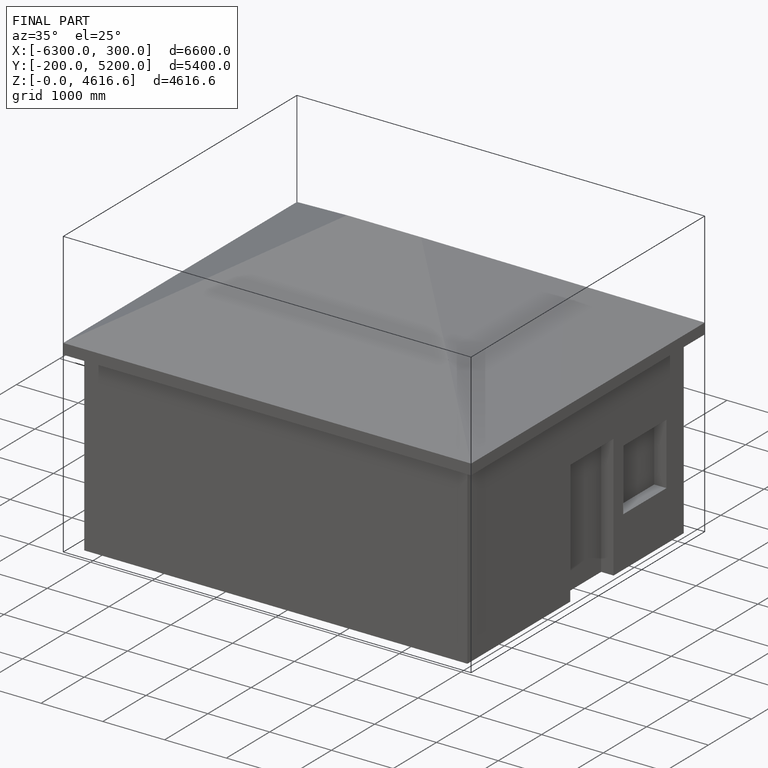
[diagram: finished part — iso view with bounding-box wireframe]
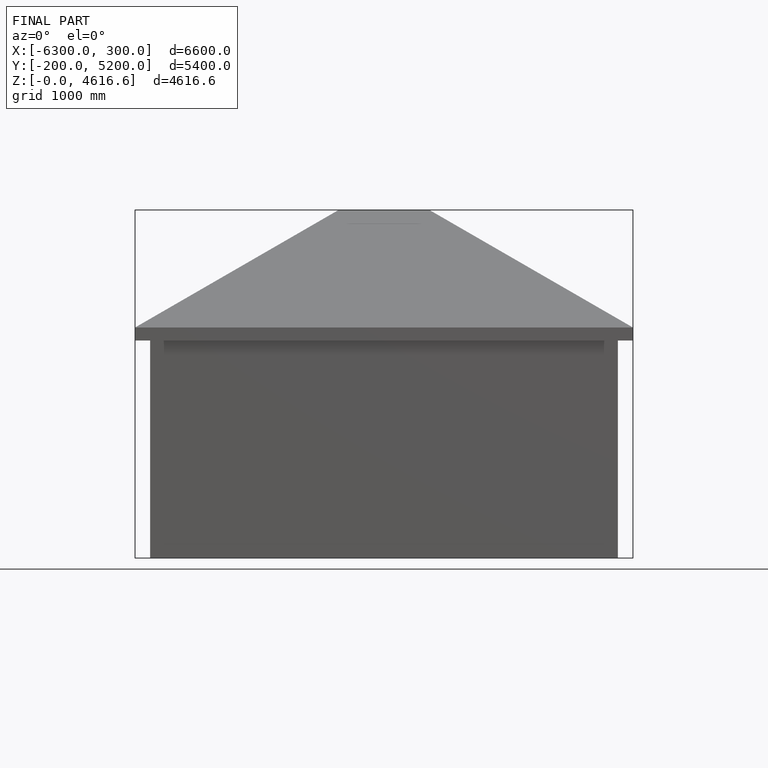
[diagram: finished part — front view with bounding-box wireframe]
